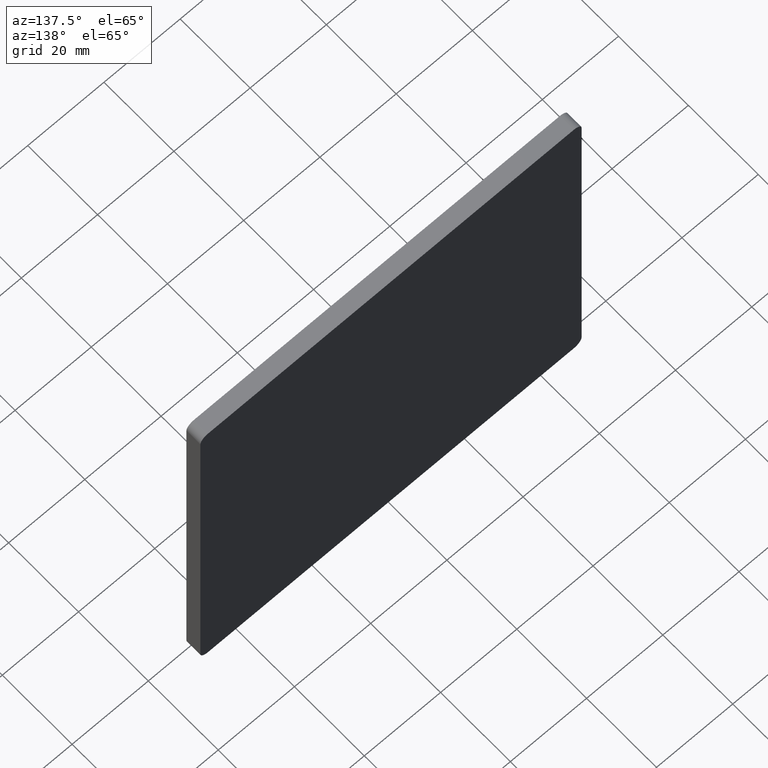
[diagram: clean part render]
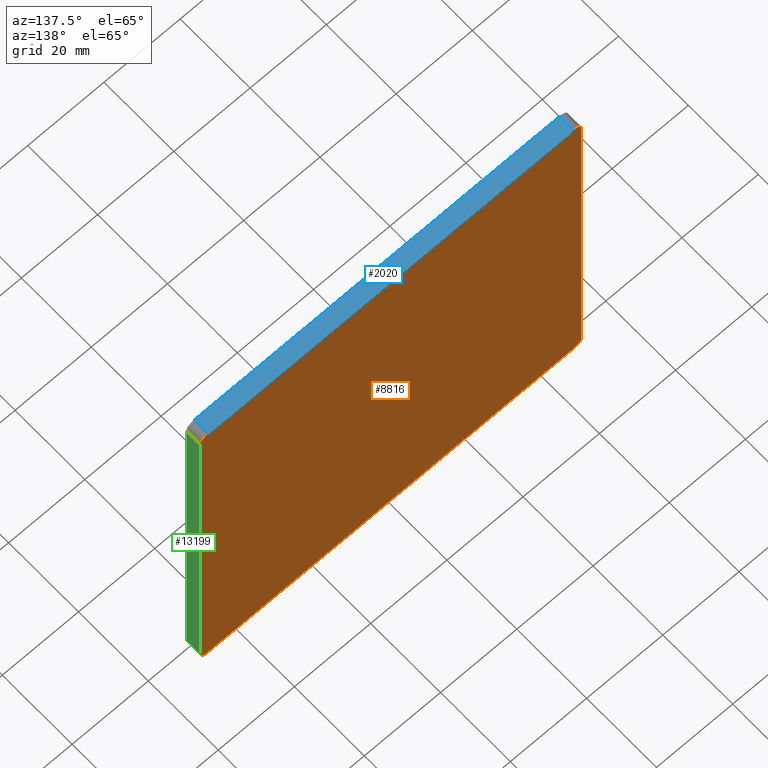
[diagram: same view with three faces highlighted in distinct colors, each labeled with its STEP entity id]
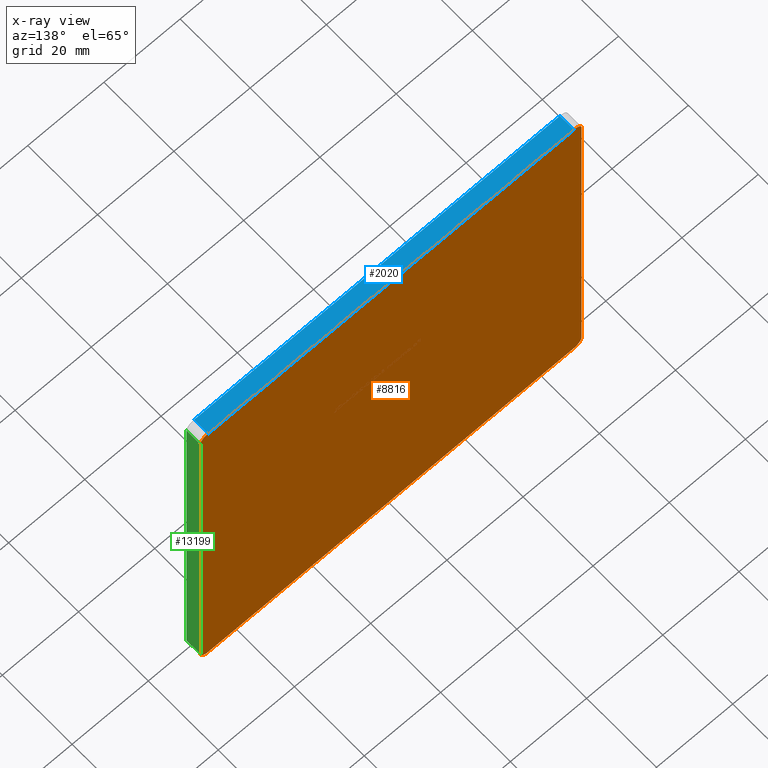
[diagram: x-ray of the same camera — body ghosted, the three highlighted faces saturated]
A machine part, auxiliary view with three faces highlighted in distinct colors.
The next image is the same camera in x-ray (body ghosted, the three faces saturated) — at least one of them is partly hidden behind the body in this view.
Their STEP definitions:

[orange] entity #8816 — the highlighted planar face has unit normal (0, 1, 0).
#309 = VECTOR ( 'NONE', #8072, 1000.000000000000000 ) ;
#360 = DIRECTION ( 'NONE',  ( 0.000000000000000000, 0.000000000000000000, 1.000000000000000000 ) ) ;
#490 = LINE ( 'NONE', #9033, #3710 ) ;
#545 = CARTESIAN_POINT ( 'NONE',  ( 49.99999999999998579, 4.000000000000000000, -49.99999999999999289 ) ) ;
#577 = VERTEX_POINT ( 'NONE', #9493 ) ;
#894 = EDGE_CURVE ( 'NONE', #9174, #2823, #8472, .T. ) ;
#1771 = EDGE_CURVE ( 'NONE', #5844, #12570, #3089, .T. ) ;
#2003 = ORIENTED_EDGE ( 'NONE', *, *, #894, .T. ) ;
#2007 = CARTESIAN_POINT ( 'NONE',  ( -50.00000000000000000, 4.000000000000000000, -49.99999999999998579 ) ) ;
#2823 = VERTEX_POINT ( 'NONE', #10522 ) ;
#2913 = EDGE_CURVE ( 'NONE', #577, #12423, #3261, .T. ) ;
#3089 = LINE ( 'NONE', #11031, #12452 ) ;
#3246 = DIRECTION ( 'NONE',  ( 0.000000000000000000, 0.000000000000000000, 1.000000000000000000 ) ) ;
#3261 = CIRCLE ( 'NONE', #9855, 2.000000000000001776 ) ;
#3710 = VECTOR ( 'NONE', #7880, 1000.000000000000000 ) ;
#4046 = ORIENTED_EDGE ( 'NONE', *, *, #4702, .T. ) ;
#4572 = EDGE_CURVE ( 'NONE', #12570, #6740, #12225, .T. ) ;
#4702 = EDGE_CURVE ( 'NONE', #6740, #9174, #7063, .T. ) ;
#4784 = DIRECTION ( 'NONE',  ( 0.000000000000000000, -0.000000000000000000, 1.000000000000000000 ) ) ;
#5090 = DIRECTION ( 'NONE',  ( 0.000000000000000000, 0.000000000000000000, 1.000000000000000000 ) ) ;
#5317 = DIRECTION ( 'NONE',  ( -1.000000000000000000, -0.000000000000000000, 6.938893903907229610E-17 ) ) ;
#5403 = AXIS2_PLACEMENT_3D ( 'NONE', #6326, #13704, #7404 ) ;
#5844 = VERTEX_POINT ( 'NONE', #12478 ) ;
#5903 = EDGE_CURVE ( 'NONE', #6378, #5844, #7711, .T. ) ;
#6035 = ORIENTED_EDGE ( 'NONE', *, *, #2913, .T. ) ;
#6132 = ORIENTED_EDGE ( 'NONE', *, *, #4572, .T. ) ;
#6326 = CARTESIAN_POINT ( 'NONE',  ( -47.99999999999998579, 4.000000000000000000, 48.00000000000000711 ) ) ;
#6378 = VERTEX_POINT ( 'NONE', #11768 ) ;
#6740 = VERTEX_POINT ( 'NONE', #11270 ) ;
#7063 = LINE ( 'NONE', #545, #309 ) ;
#7073 = CARTESIAN_POINT ( 'NONE',  ( 49.99999999999998579, 4.000000000000000000, -47.99999999999999289 ) ) ;
#7404 = DIRECTION ( 'NONE',  ( 0.000000000000000000, 0.000000000000000000, 1.000000000000000000 ) ) ;
#7582 = ORIENTED_EDGE ( 'NONE', *, *, #10297, .T. ) ;
#7711 = CIRCLE ( 'NONE', #5403, 2.000000000000001776 ) ;
#7870 = CARTESIAN_POINT ( 'NONE',  ( -50.00000000000000000, 4.000000000000000000, -47.99999999999998579 ) ) ;
#7878 = CARTESIAN_POINT ( 'NONE',  ( 0.000000000000000000, 4.000000000000000000, 0.000000000000000000 ) ) ;
#7880 = DIRECTION ( 'NONE',  ( 1.387778780781445676E-16, 0.000000000000000000, 1.000000000000000000 ) ) ;
#8036 = FACE_OUTER_BOUND ( 'NONE', #9311, .T. ) ;
#8072 = DIRECTION ( 'NONE',  ( -2.775557561562891351E-16, -0.000000000000000000, -1.000000000000000000 ) ) ;
#8082 = EDGE_CURVE ( 'NONE', #12423, #6378, #490, .T. ) ;
#8168 = ORIENTED_EDGE ( 'NONE', *, *, #8082, .T. ) ;
#8472 = CIRCLE ( 'NONE', #8682, 2.000000000000001776 ) ;
#8595 = AXIS2_PLACEMENT_3D ( 'NONE', #9942, #12140, #360 ) ;
#8682 = AXIS2_PLACEMENT_3D ( 'NONE', #9380, #11484, #5090 ) ;
#8816 = ADVANCED_FACE ( 'NONE', ( #8036 ), #11128, .T. ) ;
#9033 = CARTESIAN_POINT ( 'NONE',  ( -50.00000000000000000, 4.000000000000000000, -49.99999999999998579 ) ) ;
#9174 = VERTEX_POINT ( 'NONE', #7073 ) ;
#9311 = EDGE_LOOP ( 'NONE', ( #4046, #2003, #7582, #6035, #8168, #13404, #11461, #6132 ) ) ;
#9380 = CARTESIAN_POINT ( 'NONE',  ( 47.99999999999998579, 4.000000000000000000, -47.99999999999999289 ) ) ;
#9493 = CARTESIAN_POINT ( 'NONE',  ( -48.00000000000000000, 4.000000000000000000, -49.99999999999998579 ) ) ;
#9641 = DIRECTION ( 'NONE',  ( 0.000000000000000000, 1.000000000000000000, 0.000000000000000000 ) ) ;
#9855 = AXIS2_PLACEMENT_3D ( 'NONE', #11757, #9641, #3246 ) ;
#9942 = CARTESIAN_POINT ( 'NONE',  ( 48.00000000000001421, 4.000000000000000000, 48.00000000000000711 ) ) ;
#10297 = EDGE_CURVE ( 'NONE', #2823, #577, #13708, .T. ) ;
#10522 = CARTESIAN_POINT ( 'NONE',  ( 47.99999999999995737, 4.000000000000000000, -49.99999999999999289 ) ) ;
#11031 = CARTESIAN_POINT ( 'NONE',  ( -49.99999999999998579, 4.000000000000000000, 50.00000000000000711 ) ) ;
#11128 = PLANE ( 'NONE',  #13829 ) ;
#11175 = DIRECTION ( 'NONE',  ( 0.000000000000000000, 1.000000000000000000, 0.000000000000000000 ) ) ;
#11230 = CARTESIAN_POINT ( 'NONE',  ( 48.00000000000001421, 4.000000000000000000, 50.00000000000000711 ) ) ;
#11270 = CARTESIAN_POINT ( 'NONE',  ( 50.00000000000001421, 4.000000000000000000, 48.00000000000000711 ) ) ;
#11461 = ORIENTED_EDGE ( 'NONE', *, *, #1771, .T. ) ;
#11484 = DIRECTION ( 'NONE',  ( 0.000000000000000000, 1.000000000000000000, 0.000000000000000000 ) ) ;
#11757 = CARTESIAN_POINT ( 'NONE',  ( -48.00000000000000000, 4.000000000000000000, -47.99999999999998579 ) ) ;
#11768 = CARTESIAN_POINT ( 'NONE',  ( -49.99999999999998579, 4.000000000000000000, 48.00000000000001421 ) ) ;
#12118 = DIRECTION ( 'NONE',  ( 1.000000000000000000, 0.000000000000000000, 0.000000000000000000 ) ) ;
#12140 = DIRECTION ( 'NONE',  ( 0.000000000000000000, 1.000000000000000000, 0.000000000000000000 ) ) ;
#12225 = CIRCLE ( 'NONE', #8595, 2.000000000000001776 ) ;
#12423 = VERTEX_POINT ( 'NONE', #7870 ) ;
#12452 = VECTOR ( 'NONE', #12118, 1000.000000000000000 ) ;
#12478 = CARTESIAN_POINT ( 'NONE',  ( -47.99999999999998579, 4.000000000000000000, 50.00000000000000711 ) ) ;
#12531 = VECTOR ( 'NONE', #5317, 1000.000000000000000 ) ;
#12570 = VERTEX_POINT ( 'NONE', #11230 ) ;
#13404 = ORIENTED_EDGE ( 'NONE', *, *, #5903, .T. ) ;
#13704 = DIRECTION ( 'NONE',  ( 0.000000000000000000, 1.000000000000000000, 0.000000000000000000 ) ) ;
#13708 = LINE ( 'NONE', #2007, #12531 ) ;
#13829 = AXIS2_PLACEMENT_3D ( 'NONE', #7878, #11175, #4784 ) ;

[blue] entity #2020 — the highlighted planar face has unit normal (0, 0, -1).
#1062 = EDGE_CURVE ( 'NONE', #6182, #12570, #11643, .T. ) ;
#1446 = DIRECTION ( 'NONE',  ( 0.000000000000000000, -1.000000000000000000, 0.000000000000000000 ) ) ;
#1648 = ORIENTED_EDGE ( 'NONE', *, *, #1771, .F. ) ;
#1771 = EDGE_CURVE ( 'NONE', #5844, #12570, #3089, .T. ) ;
#1895 = DIRECTION ( 'NONE',  ( 1.000000000000000000, 0.000000000000000000, 0.000000000000000000 ) ) ;
#2020 = ADVANCED_FACE ( 'NONE', ( #5620 ), #8231, .F. ) ;
#2171 = CARTESIAN_POINT ( 'NONE',  ( 48.00000000000001421, 4.000000000000000000, 50.00000000000000711 ) ) ;
#2898 = CARTESIAN_POINT ( 'NONE',  ( -49.99999999999998579, 0.000000000000000000, 50.00000000000000711 ) ) ;
#2943 = DIRECTION ( 'NONE',  ( -1.000000000000000000, 0.000000000000000000, -0.000000000000000000 ) ) ;
#3089 = LINE ( 'NONE', #11031, #12452 ) ;
#3271 = CARTESIAN_POINT ( 'NONE',  ( 48.00000000000001421, 0.000000000000000000, 50.00000000000000711 ) ) ;
#5620 = FACE_OUTER_BOUND ( 'NONE', #11392, .T. ) ;
#5844 = VERTEX_POINT ( 'NONE', #12478 ) ;
#6128 = VECTOR ( 'NONE', #7673, 1000.000000000000000 ) ;
#6182 = VERTEX_POINT ( 'NONE', #3271 ) ;
#6206 = LINE ( 'NONE', #2898, #11542 ) ;
#6524 = ORIENTED_EDGE ( 'NONE', *, *, #11493, .T. ) ;
#7673 = DIRECTION ( 'NONE',  ( -0.000000000000000000, 1.000000000000000000, -0.000000000000000000 ) ) ;
#7812 = ORIENTED_EDGE ( 'NONE', *, *, #1062, .T. ) ;
#8231 = PLANE ( 'NONE',  #8494 ) ;
#8494 = AXIS2_PLACEMENT_3D ( 'NONE', #11401, #11496, #2943 ) ;
#8665 = VERTEX_POINT ( 'NONE', #13924 ) ;
#9516 = VECTOR ( 'NONE', #1446, 1000.000000000000000 ) ;
#9771 = EDGE_CURVE ( 'NONE', #8665, #6182, #6206, .T. ) ;
#10405 = ORIENTED_EDGE ( 'NONE', *, *, #9771, .T. ) ;
#11031 = CARTESIAN_POINT ( 'NONE',  ( -49.99999999999998579, 4.000000000000000000, 50.00000000000000711 ) ) ;
#11230 = CARTESIAN_POINT ( 'NONE',  ( 48.00000000000001421, 4.000000000000000000, 50.00000000000000711 ) ) ;
#11392 = EDGE_LOOP ( 'NONE', ( #1648, #6524, #10405, #7812 ) ) ;
#11401 = CARTESIAN_POINT ( 'NONE',  ( -49.99999999999998579, 4.000000000000000000, 50.00000000000000711 ) ) ;
#11493 = EDGE_CURVE ( 'NONE', #5844, #8665, #11531, .T. ) ;
#11496 = DIRECTION ( 'NONE',  ( 0.000000000000000000, 0.000000000000000000, -1.000000000000000000 ) ) ;
#11531 = LINE ( 'NONE', #13238, #9516 ) ;
#11542 = VECTOR ( 'NONE', #1895, 1000.000000000000000 ) ;
#11643 = LINE ( 'NONE', #2171, #6128 ) ;
#12118 = DIRECTION ( 'NONE',  ( 1.000000000000000000, 0.000000000000000000, 0.000000000000000000 ) ) ;
#12452 = VECTOR ( 'NONE', #12118, 1000.000000000000000 ) ;
#12478 = CARTESIAN_POINT ( 'NONE',  ( -47.99999999999998579, 4.000000000000000000, 50.00000000000000711 ) ) ;
#12570 = VERTEX_POINT ( 'NONE', #11230 ) ;
#13238 = CARTESIAN_POINT ( 'NONE',  ( -47.99999999999998579, 4.000000000000000000, 50.00000000000000711 ) ) ;
#13924 = CARTESIAN_POINT ( 'NONE',  ( -47.99999999999998579, 0.000000000000000000, 50.00000000000000711 ) ) ;

[green] entity #13199 — the highlighted planar face has unit normal (-1, 0, 0).
#274 = VERTEX_POINT ( 'NONE', #7915 ) ;
#309 = VECTOR ( 'NONE', #8072, 1000.000000000000000 ) ;
#545 = CARTESIAN_POINT ( 'NONE',  ( 49.99999999999998579, 4.000000000000000000, -49.99999999999999289 ) ) ;
#683 = EDGE_CURVE ( 'NONE', #274, #9174, #12997, .T. ) ;
#969 = VECTOR ( 'NONE', #7583, 1000.000000000000000 ) ;
#1479 = ORIENTED_EDGE ( 'NONE', *, *, #683, .T. ) ;
#1546 = EDGE_LOOP ( 'NONE', ( #2499, #1479, #9815, #11476 ) ) ;
#2053 = CARTESIAN_POINT ( 'NONE',  ( 50.00000000000001421, 0.000000000000000000, 48.00000000000000711 ) ) ;
#2357 = DIRECTION ( 'NONE',  ( 2.775557561562891351E-16, 0.000000000000000000, 1.000000000000000000 ) ) ;
#2499 = ORIENTED_EDGE ( 'NONE', *, *, #8773, .T. ) ;
#3380 = CARTESIAN_POINT ( 'NONE',  ( 49.99999999999998579, 4.000000000000000000, -47.99999999999999289 ) ) ;
#4461 = FACE_OUTER_BOUND ( 'NONE', #1546, .T. ) ;
#4524 = DIRECTION ( 'NONE',  ( -1.000000000000000000, 0.000000000000000000, 2.775557561562891351E-16 ) ) ;
#4702 = EDGE_CURVE ( 'NONE', #6740, #9174, #7063, .T. ) ;
#5392 = CARTESIAN_POINT ( 'NONE',  ( 50.00000000000001421, 4.000000000000000000, 48.00000000000000711 ) ) ;
#5722 = LINE ( 'NONE', #10816, #9217 ) ;
#6154 = EDGE_CURVE ( 'NONE', #6740, #13307, #9187, .T. ) ;
#6635 = DIRECTION ( 'NONE',  ( -2.775557561562891351E-16, -0.000000000000000000, -1.000000000000000000 ) ) ;
#6658 = DIRECTION ( 'NONE',  ( -0.000000000000000000, 1.000000000000000000, -0.000000000000000000 ) ) ;
#6740 = VERTEX_POINT ( 'NONE', #11270 ) ;
#7063 = LINE ( 'NONE', #545, #309 ) ;
#7073 = CARTESIAN_POINT ( 'NONE',  ( 49.99999999999998579, 4.000000000000000000, -47.99999999999999289 ) ) ;
#7583 = DIRECTION ( 'NONE',  ( 0.000000000000000000, -1.000000000000000000, 0.000000000000000000 ) ) ;
#7806 = VECTOR ( 'NONE', #6658, 1000.000000000000000 ) ;
#7915 = CARTESIAN_POINT ( 'NONE',  ( 49.99999999999998579, 0.000000000000000000, -47.99999999999999289 ) ) ;
#8072 = DIRECTION ( 'NONE',  ( -2.775557561562891351E-16, -0.000000000000000000, -1.000000000000000000 ) ) ;
#8773 = EDGE_CURVE ( 'NONE', #13307, #274, #5722, .T. ) ;
#9174 = VERTEX_POINT ( 'NONE', #7073 ) ;
#9187 = LINE ( 'NONE', #5392, #969 ) ;
#9217 = VECTOR ( 'NONE', #6635, 1000.000000000000000 ) ;
#9815 = ORIENTED_EDGE ( 'NONE', *, *, #4702, .F. ) ;
#10318 = AXIS2_PLACEMENT_3D ( 'NONE', #13549, #4524, #2357 ) ;
#10816 = CARTESIAN_POINT ( 'NONE',  ( 49.99999999999998579, 0.000000000000000000, -49.99999999999999289 ) ) ;
#11270 = CARTESIAN_POINT ( 'NONE',  ( 50.00000000000001421, 4.000000000000000000, 48.00000000000000711 ) ) ;
#11373 = PLANE ( 'NONE',  #10318 ) ;
#11476 = ORIENTED_EDGE ( 'NONE', *, *, #6154, .T. ) ;
#12997 = LINE ( 'NONE', #3380, #7806 ) ;
#13199 = ADVANCED_FACE ( 'NONE', ( #4461 ), #11373, .F. ) ;
#13307 = VERTEX_POINT ( 'NONE', #2053 ) ;
#13549 = CARTESIAN_POINT ( 'NONE',  ( 49.99999999999998579, 4.000000000000000000, -49.99999999999999289 ) ) ;